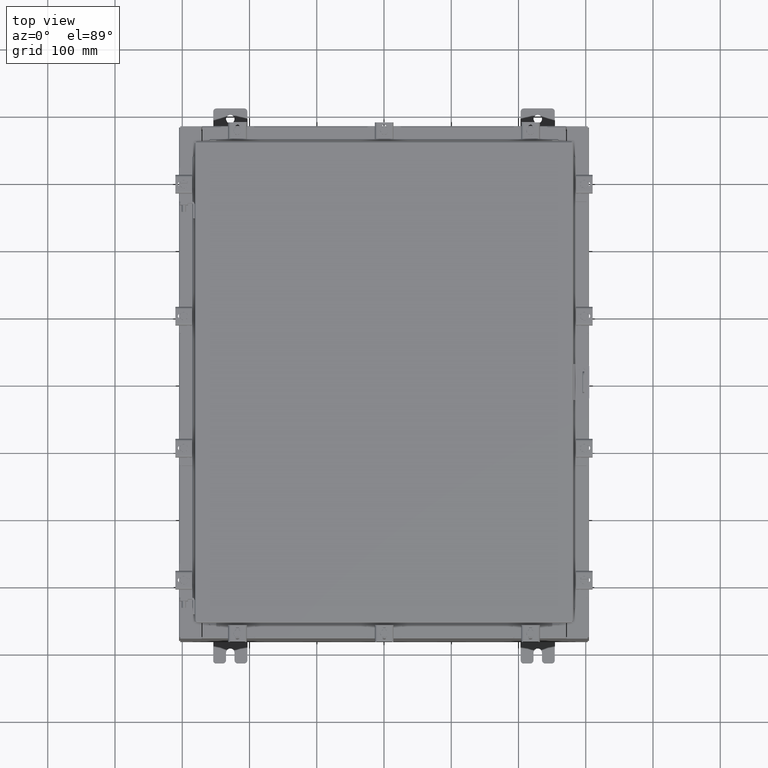
[diagram: clean part render]
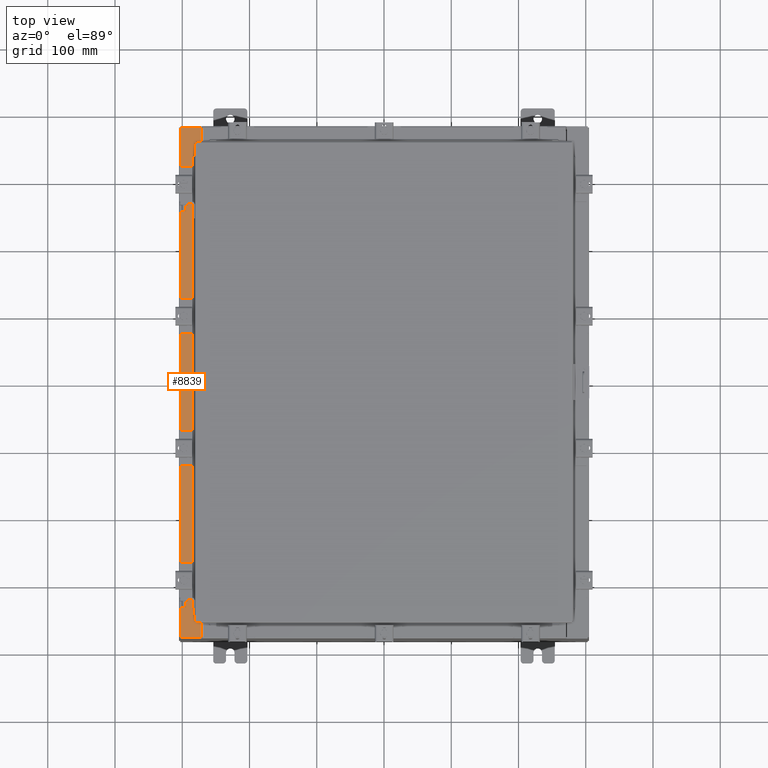
[diagram: same view with one face highlighted and labeled with its STEP entity id]
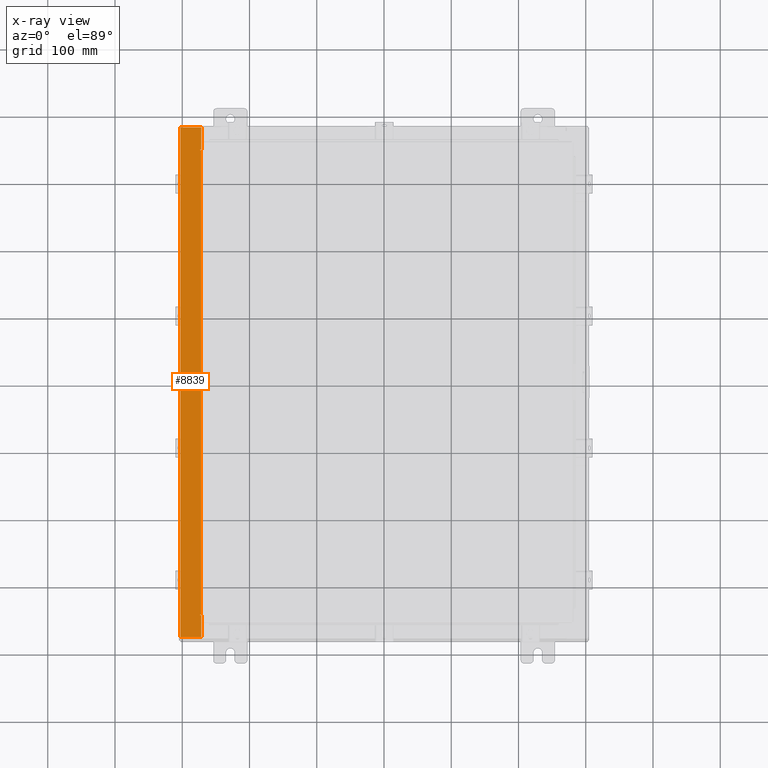
[diagram: x-ray of the same camera — body ghosted, the highlighted face saturated]
A machine part, top view. The second image highlights one B-rep face of the part: STEP entity #8839.
The next image is the same camera in x-ray: the body ghosted, the highlighted face saturated — about 0% of this face is hidden behind the body in this view.
In plain terms, the highlighted planar face has unit normal (0, 0, -1).
Its self-contained STEP definition (entity closure, byte-faithful):
#47 = CARTESIAN_POINT ( 'NONE',  ( -10.75005000000005000, 13.61242499999999600, 11.92530000000000900 ) ) ;
#436 = LINE ( 'NONE', #5943, #4698 ) ;
#502 = LINE ( 'NONE', #6057, #22602 ) ;
#599 = EDGE_CURVE ( 'NONE', #14348, #13303, #19292, .T. ) ;
#1157 = ORIENTED_EDGE ( 'NONE', *, *, #2393, .F. ) ;
#1393 = VERTEX_POINT ( 'NONE', #19173 ) ;
#1865 = DIRECTION ( 'NONE',  ( 1.000000000000000000, 0.0000000000000000000, 0.0000000000000000000 ) ) ;
#2054 = CIRCLE ( 'NONE', #17155, 0.01867499999999949400 ) ;
#2099 = EDGE_CURVE ( 'NONE', #21547, #6036, #11185, .T. ) ;
#2111 = CARTESIAN_POINT ( 'NONE',  ( -10.69970000000004800, 13.63109999999999800, 11.92530000000000900 ) ) ;
#2222 = ORIENTED_EDGE ( 'NONE', *, *, #13924, .T. ) ;
#2375 = VERTEX_POINT ( 'NONE', #6960 ) ;
#2393 = EDGE_CURVE ( 'NONE', #6036, #6743, #7193, .T. ) ;
#2605 = ORIENTED_EDGE ( 'NONE', *, *, #3925, .F. ) ;
#2710 = VERTEX_POINT ( 'NONE', #16715 ) ;
#2782 = CARTESIAN_POINT ( 'NONE',  ( -10.75005000000005000, -13.63109999999999800, 11.92530000000000900 ) ) ;
#3077 = DIRECTION ( 'NONE',  ( -1.000000000000000000, -4.340572780399910900E-014, 0.0000000000000000000 ) ) ;
#3925 = EDGE_CURVE ( 'NONE', #6743, #2375, #2054, .T. ) ;
#4532 = DIRECTION ( 'NONE',  ( -1.000000000000000000, 0.0000000000000000000, -7.132762385546384700E-015 ) ) ;
#4698 = VECTOR ( 'NONE', #18475, 39.37007874015748100 ) ;
#4781 = EDGE_LOOP ( 'NONE', ( #5644, #21237, #6386, #11984, #2222, #5632, #10022, #2605, #1157, #21719, #5757, #16426 ) ) ;
#5632 = ORIENTED_EDGE ( 'NONE', *, *, #6054, .T. ) ;
#5644 = ORIENTED_EDGE ( 'NONE', *, *, #599, .F. ) ;
#5757 = ORIENTED_EDGE ( 'NONE', *, *, #11786, .F. ) ;
#5943 = CARTESIAN_POINT ( 'NONE',  ( -10.75005000000005000, 13.59374999999999800, 11.92530000000000900 ) ) ;
#5974 = DIRECTION ( 'NONE',  ( 0.0000000000000000000, 1.000000000000000000, 0.0000000000000000000 ) ) ;
#6036 = VERTEX_POINT ( 'NONE', #22609 ) ;
#6054 = EDGE_CURVE ( 'NONE', #14182, #1393, #7995, .T. ) ;
#6057 = CARTESIAN_POINT ( 'NONE',  ( -10.69970000000004800, 0.0000000000000000000, 11.92530000000000900 ) ) ;
#6386 = ORIENTED_EDGE ( 'NONE', *, *, #12371, .T. ) ;
#6553 = CARTESIAN_POINT ( 'NONE',  ( -11.91230000000004600, 14.92530000000000000, 11.92530000000000000 ) ) ;
#6628 = VECTOR ( 'NONE', #16849, 39.37007874015748100 ) ;
#6743 = VERTEX_POINT ( 'NONE', #13824 ) ;
#6960 = CARTESIAN_POINT ( 'NONE',  ( -10.75005000000005000, -13.63109999999999800, 11.92530000000000900 ) ) ;
#7193 = LINE ( 'NONE', #17105, #6628 ) ;
#7995 = LINE ( 'NONE', #20662, #12239 ) ;
#8400 = LINE ( 'NONE', #16514, #16806 ) ;
#8476 = CARTESIAN_POINT ( 'NONE',  ( -10.69970000000004800, 13.63109999999999800, 11.92530000000000900 ) ) ;
#8839 = ADVANCED_FACE ( 'NONE', ( #11283 ), #22292, .F. ) ;
#9515 = EDGE_CURVE ( 'NONE', #14348, #16016, #502, .T. ) ;
#9894 = CARTESIAN_POINT ( 'NONE',  ( -8.532114493236847900E-014, 0.0000000000000000000, 11.92530000000008500 ) ) ;
#10022 = ORIENTED_EDGE ( 'NONE', *, *, #11917, .F. ) ;
#10561 = VERTEX_POINT ( 'NONE', #6553 ) ;
#10800 = AXIS2_PLACEMENT_3D ( 'NONE', #9894, #15287, #4532 ) ;
#10859 = EDGE_CURVE ( 'NONE', #2710, #10561, #8400, .T. ) ;
#11016 = DIRECTION ( 'NONE',  ( 1.000000000000000000, -0.0000000000000000000, 7.132762385546384700E-015 ) ) ;
#11185 = LINE ( 'NONE', #20253, #15368 ) ;
#11283 = FACE_OUTER_BOUND ( 'NONE', #4781, .T. ) ;
#11786 = EDGE_CURVE ( 'NONE', #14256, #21547, #436, .T. ) ;
#11917 = EDGE_CURVE ( 'NONE', #2375, #1393, #20305, .T. ) ;
#11984 = ORIENTED_EDGE ( 'NONE', *, *, #10859, .F. ) ;
#12030 = VECTOR ( 'NONE', #15391, 39.37007874015748100 ) ;
#12239 = VECTOR ( 'NONE', #19910, 39.37007874015748100 ) ;
#12371 = EDGE_CURVE ( 'NONE', #16016, #10561, #16777, .T. ) ;
#12544 = VECTOR ( 'NONE', #11016, 39.37007874015748100 ) ;
#12692 = DIRECTION ( 'NONE',  ( -7.132762385546384700E-015, -0.0000000000000000000, 1.000000000000000000 ) ) ;
#13303 = VERTEX_POINT ( 'NONE', #20020 ) ;
#13365 = DIRECTION ( 'NONE',  ( -1.000000000000000000, 0.0000000000000000000, -7.132762385546384700E-015 ) ) ;
#13824 = CARTESIAN_POINT ( 'NONE',  ( -10.75005000000005000, -13.59375000000000000, 11.92530000000000900 ) ) ;
#13924 = EDGE_CURVE ( 'NONE', #2710, #14182, #21917, .T. ) ;
#14067 = VECTOR ( 'NONE', #3077, 39.37007874015748100 ) ;
#14182 = VERTEX_POINT ( 'NONE', #18697 ) ;
#14256 = VERTEX_POINT ( 'NONE', #18923 ) ;
#14348 = VERTEX_POINT ( 'NONE', #8476 ) ;
#15128 = DIRECTION ( 'NONE',  ( 1.000000000000000000, 0.0000000000000000000, 0.0000000000000000000 ) ) ;
#15197 = DIRECTION ( 'NONE',  ( -7.132762385546384700E-015, -0.0000000000000000000, 1.000000000000000000 ) ) ;
#15252 = CARTESIAN_POINT ( 'NONE',  ( -10.75005000000005000, -13.61242500000000000, 11.92530000000000900 ) ) ;
#15287 = DIRECTION ( 'NONE',  ( 7.132762385546384700E-015, 0.0000000000000000000, -1.000000000000000000 ) ) ;
#15368 = VECTOR ( 'NONE', #20006, 39.37007874015748100 ) ;
#15391 = DIRECTION ( 'NONE',  ( 1.000000000000000000, 0.0000000000000000000, 0.0000000000000000000 ) ) ;
#16016 = VERTEX_POINT ( 'NONE', #19916 ) ;
#16426 = ORIENTED_EDGE ( 'NONE', *, *, #17463, .F. ) ;
#16514 = CARTESIAN_POINT ( 'NONE',  ( -11.91230000000004600, 14.92530000000000000, 11.92530000000000000 ) ) ;
#16597 = CIRCLE ( 'NONE', #20204, 0.01867499999999949400 ) ;
#16715 = CARTESIAN_POINT ( 'NONE',  ( -11.91230000000004600, -14.92530000000000000, 11.92530000000000000 ) ) ;
#16777 = LINE ( 'NONE', #22114, #20873 ) ;
#16806 = VECTOR ( 'NONE', #18279, 39.37007874015748100 ) ;
#16849 = DIRECTION ( 'NONE',  ( -1.000000000000000000, 0.0000000000000000000, 0.0000000000000000000 ) ) ;
#17105 = CARTESIAN_POINT ( 'NONE',  ( -10.71270000000005000, -13.59375000000000000, 11.92530000000000900 ) ) ;
#17155 = AXIS2_PLACEMENT_3D ( 'NONE', #15252, #15197, #15128 ) ;
#17463 = EDGE_CURVE ( 'NONE', #13303, #14256, #16597, .T. ) ;
#18279 = DIRECTION ( 'NONE',  ( -0.0000000000000000000, 1.000000000000000000, -0.0000000000000000000 ) ) ;
#18475 = DIRECTION ( 'NONE',  ( 1.000000000000000000, 0.0000000000000000000, 0.0000000000000000000 ) ) ;
#18697 = CARTESIAN_POINT ( 'NONE',  ( -10.69970000000004800, -14.92530000000000000, 11.92530000000000900 ) ) ;
#18923 = CARTESIAN_POINT ( 'NONE',  ( -10.75005000000005000, 13.59374999999999800, 11.92530000000000900 ) ) ;
#19173 = CARTESIAN_POINT ( 'NONE',  ( -10.69970000000004800, -13.63110000000000200, 11.92530000000000900 ) ) ;
#19292 = LINE ( 'NONE', #2111, #14067 ) ;
#19854 = CARTESIAN_POINT ( 'NONE',  ( -8.532114493236847900E-014, -14.92530000000000000, 11.92530000000008500 ) ) ;
#19910 = DIRECTION ( 'NONE',  ( 0.0000000000000000000, 1.000000000000000000, 0.0000000000000000000 ) ) ;
#19916 = CARTESIAN_POINT ( 'NONE',  ( -10.69970000000004800, 14.92530000000000000, 11.92530000000000900 ) ) ;
#20006 = DIRECTION ( 'NONE',  ( -0.0000000000000000000, -1.000000000000000000, -0.0000000000000000000 ) ) ;
#20020 = CARTESIAN_POINT ( 'NONE',  ( -10.75005000000005000, 13.63109999999999600, 11.92530000000000900 ) ) ;
#20204 = AXIS2_PLACEMENT_3D ( 'NONE', #47, #12692, #1865 ) ;
#20253 = CARTESIAN_POINT ( 'NONE',  ( -10.71270000000005000, 13.59375000000000000, 11.92530000000000900 ) ) ;
#20305 = LINE ( 'NONE', #2782, #12030 ) ;
#20662 = CARTESIAN_POINT ( 'NONE',  ( -10.69970000000004800, 0.0000000000000000000, 11.92530000000000900 ) ) ;
#20873 = VECTOR ( 'NONE', #13365, 39.37007874015748100 ) ;
#21237 = ORIENTED_EDGE ( 'NONE', *, *, #9515, .T. ) ;
#21547 = VERTEX_POINT ( 'NONE', #21803 ) ;
#21719 = ORIENTED_EDGE ( 'NONE', *, *, #2099, .F. ) ;
#21803 = CARTESIAN_POINT ( 'NONE',  ( -10.71270000000005000, 13.59374999999999800, 11.92530000000000900 ) ) ;
#21917 = LINE ( 'NONE', #19854, #12544 ) ;
#22114 = CARTESIAN_POINT ( 'NONE',  ( -8.532114493236847900E-014, 14.92530000000000000, 11.92530000000008500 ) ) ;
#22292 = PLANE ( 'NONE',  #10800 ) ;
#22602 = VECTOR ( 'NONE', #5974, 39.37007874015748100 ) ;
#22609 = CARTESIAN_POINT ( 'NONE',  ( -10.71270000000005000, -13.59375000000000000, 11.92530000000000900 ) ) ;